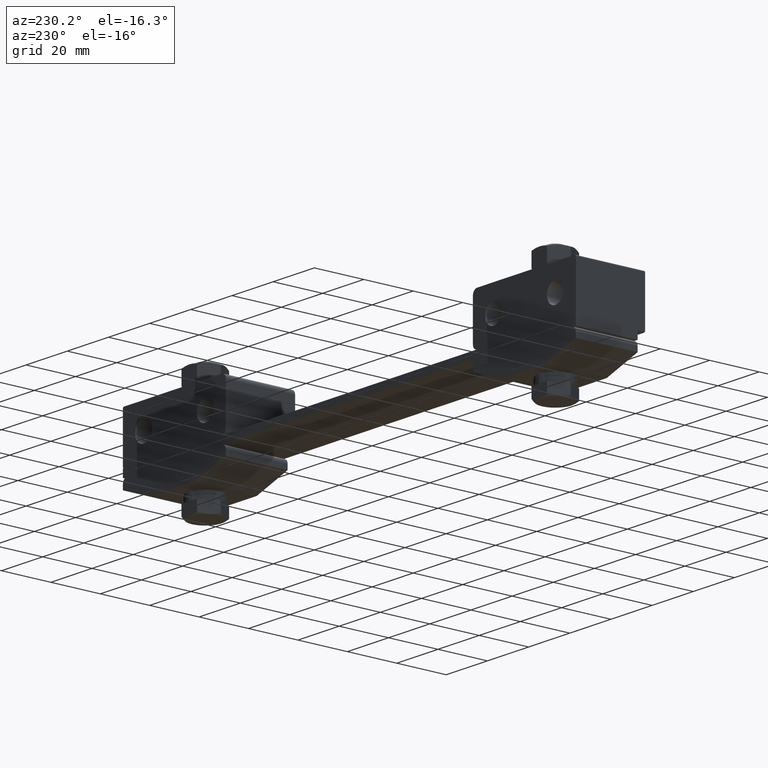
[diagram: clean part render]
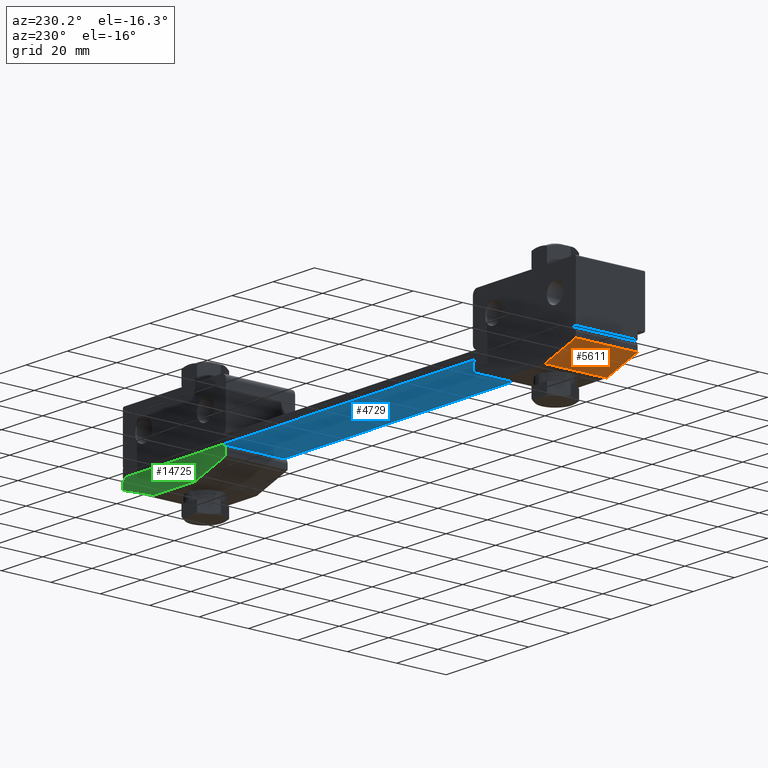
[diagram: same view with three faces highlighted in distinct colors, each labeled with its STEP entity id]
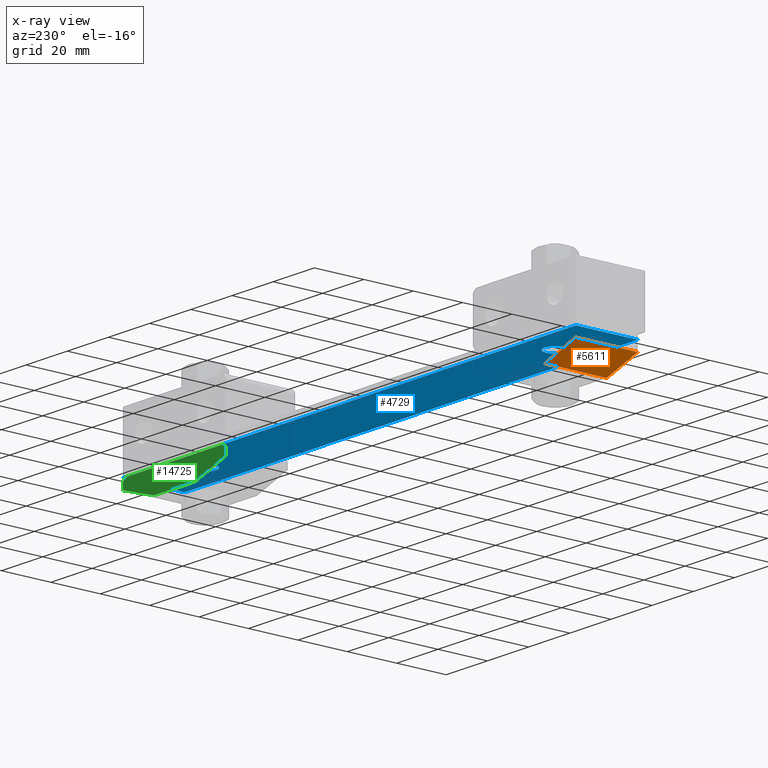
[diagram: x-ray of the same camera — body ghosted, the three highlighted faces saturated]
A machine part, auxiliary view with three faces highlighted in distinct colors.
The next image is the same camera in x-ray (body ghosted, the three faces saturated) — at least one of them is partly hidden behind the body in this view.
Their STEP definitions:

[orange] entity #5611 — the highlighted planar face has unit normal (0.3162, 0, 0.9487).
#824 = AXIS2_PLACEMENT_3D ( 'NONE', #11322, #19181, #10033 ) ;
#1397 = VECTOR ( 'NONE', #3157, 1000.000000000000000 ) ;
#1538 = ORIENTED_EDGE ( 'NONE', *, *, #8018, .F. ) ;
#2032 = FACE_OUTER_BOUND ( 'NONE', #15397, .T. ) ;
#2765 = CARTESIAN_POINT ( 'NONE',  ( -95.00000000000000000, -12.50000000000000000, -9.000000000000000000 ) ) ;
#3157 = DIRECTION ( 'NONE',  ( 0.0000000000000000000, 1.000000000000000000, 0.0000000000000000000 ) ) ;
#3241 = CARTESIAN_POINT ( 'NONE',  ( -110.0000000000000000, 12.50000000000000000, -4.000000000000000000 ) ) ;
#3351 = CARTESIAN_POINT ( 'NONE',  ( -111.1999999999999900, 12.50000000000000000, -3.600000000000000100 ) ) ;
#3411 = VERTEX_POINT ( 'NONE', #17905 ) ;
#3718 = VERTEX_POINT ( 'NONE', #8116 ) ;
#5611 = ADVANCED_FACE ( 'NONE', ( #2032 ), #17525, .F. ) ;
#5808 = ORIENTED_EDGE ( 'NONE', *, *, #15979, .F. ) ;
#8018 = EDGE_CURVE ( 'NONE', #3411, #9344, #9483, .T. ) ;
#8116 = CARTESIAN_POINT ( 'NONE',  ( -95.00000000000000000, 12.50000000000000000, -9.000000000000000000 ) ) ;
#8926 = CARTESIAN_POINT ( 'NONE',  ( -111.1999999999999900, -12.50000000000000000, -3.600000000000000100 ) ) ;
#9267 = CARTESIAN_POINT ( 'NONE',  ( -95.00000000000000000, -12.50000000000000000, -9.000000000000000000 ) ) ;
#9344 = VERTEX_POINT ( 'NONE', #9267 ) ;
#9483 = LINE ( 'NONE', #8926, #10700 ) ;
#9686 = LINE ( 'NONE', #3351, #17427 ) ;
#9868 = EDGE_CURVE ( 'NONE', #9344, #3718, #18383, .T. ) ;
#10033 = DIRECTION ( 'NONE',  ( 0.9486832980505138800, 0.0000000000000000000, -0.3162277660168380000 ) ) ;
#10700 = VECTOR ( 'NONE', #18292, 999.9999999999998900 ) ;
#10850 = VECTOR ( 'NONE', #18407, 1000.000000000000000 ) ;
#11322 = CARTESIAN_POINT ( 'NONE',  ( -95.00000000000000000, -14.00000000000000000, -9.000000000000000000 ) ) ;
#11725 = ORIENTED_EDGE ( 'NONE', *, *, #9868, .F. ) ;
#12504 = CARTESIAN_POINT ( 'NONE',  ( -110.0000000000000000, -14.00000000000000000, -4.000000000000000000 ) ) ;
#13187 = VERTEX_POINT ( 'NONE', #3241 ) ;
#15397 = EDGE_LOOP ( 'NONE', ( #19196, #5808, #11725, #1538 ) ) ;
#15979 = EDGE_CURVE ( 'NONE', #3718, #13187, #9686, .T. ) ;
#17350 = DIRECTION ( 'NONE',  ( -0.9486832980505137700, 0.0000000000000000000, 0.3162277660168380000 ) ) ;
#17427 = VECTOR ( 'NONE', #17350, 999.9999999999998900 ) ;
#17525 = PLANE ( 'NONE',  #824 ) ;
#17682 = LINE ( 'NONE', #12504, #1397 ) ;
#17905 = CARTESIAN_POINT ( 'NONE',  ( -110.0000000000000000, -12.50000000000000000, -4.000000000000000000 ) ) ;
#18292 = DIRECTION ( 'NONE',  ( 0.9486832980505137700, 0.0000000000000000000, -0.3162277660168380000 ) ) ;
#18383 = LINE ( 'NONE', #2765, #10850 ) ;
#18407 = DIRECTION ( 'NONE',  ( 0.0000000000000000000, 1.000000000000000000, 0.0000000000000000000 ) ) ;
#18617 = EDGE_CURVE ( 'NONE', #3411, #13187, #17682, .T. ) ;
#19181 = DIRECTION ( 'NONE',  ( 0.3162277660168380000, 0.0000000000000000000, 0.9486832980505138800 ) ) ;
#19196 = ORIENTED_EDGE ( 'NONE', *, *, #18617, .T. ) ;

[blue] entity #4729 — the highlighted planar face has unit normal (0, 0, 1).
#389 = DIRECTION ( 'NONE',  ( 1.000000000000000000, 0.0000000000000000000, 0.0000000000000000000 ) ) ;
#569 = CARTESIAN_POINT ( 'NONE',  ( -110.0000000000000000, 12.50000000000000000, 0.0000000000000000000 ) ) ;
#747 = EDGE_CURVE ( 'NONE', #3333, #13391, #12264, .T. ) ;
#982 = CIRCLE ( 'NONE', #7348, 4.250000000000003600 ) ;
#1344 = DIRECTION ( 'NONE',  ( 0.0000000000000000000, 0.0000000000000000000, -1.000000000000000000 ) ) ;
#1921 = CARTESIAN_POINT ( 'NONE',  ( -110.0000000000000000, -12.50000000000000000, 0.0000000000000000000 ) ) ;
#2049 = FACE_OUTER_BOUND ( 'NONE', #8543, .T. ) ;
#2186 = ORIENTED_EDGE ( 'NONE', *, *, #10026, .F. ) ;
#2688 = AXIS2_PLACEMENT_3D ( 'NONE', #4945, #15877, #8157 ) ;
#2878 = DIRECTION ( 'NONE',  ( -1.000000000000000000, 5.519574696289839900E-017, 0.0000000000000000000 ) ) ;
#3333 = VERTEX_POINT ( 'NONE', #9913 ) ;
#3369 = VERTEX_POINT ( 'NONE', #19417 ) ;
#3611 = LINE ( 'NONE', #12175, #19680 ) ;
#3733 = VERTEX_POINT ( 'NONE', #17271 ) ;
#3809 = DIRECTION ( 'NONE',  ( 0.0000000000000000000, 1.000000000000000000, 0.0000000000000000000 ) ) ;
#3912 = EDGE_LOOP ( 'NONE', ( #3937, #6437 ) ) ;
#3920 = VECTOR ( 'NONE', #3809, 1000.000000000000000 ) ;
#3937 = ORIENTED_EDGE ( 'NONE', *, *, #7026, .F. ) ;
#4089 = AXIS2_PLACEMENT_3D ( 'NONE', #1921, #17337, #389 ) ;
#4341 = DIRECTION ( 'NONE',  ( -1.000000000000000000, 0.0000000000000000000, 0.0000000000000000000 ) ) ;
#4729 = ADVANCED_FACE ( 'NONE', ( #6912, #19568, #2049 ), #8058, .F. ) ;
#4945 = CARTESIAN_POINT ( 'NONE',  ( -85.00000000000000000, 0.0000000000000000000, -1.034792368979906000E-015 ) ) ;
#5237 = VERTEX_POINT ( 'NONE', #15737 ) ;
#5264 = EDGE_CURVE ( 'NONE', #18644, #3369, #12031, .T. ) ;
#5976 = DIRECTION ( 'NONE',  ( 0.0000000000000000000, 0.0000000000000000000, -1.000000000000000000 ) ) ;
#6437 = ORIENTED_EDGE ( 'NONE', *, *, #19518, .F. ) ;
#6670 = VECTOR ( 'NONE', #7166, 1000.000000000000000 ) ;
#6912 = FACE_BOUND ( 'NONE', #3912, .T. ) ;
#7026 = EDGE_CURVE ( 'NONE', #5237, #13592, #15361, .T. ) ;
#7166 = DIRECTION ( 'NONE',  ( 1.000000000000000000, 0.0000000000000000000, 0.0000000000000000000 ) ) ;
#7262 = EDGE_CURVE ( 'NONE', #11068, #3733, #9057, .T. ) ;
#7348 = AXIS2_PLACEMENT_3D ( 'NONE', #16836, #1344, #7546 ) ;
#7546 = DIRECTION ( 'NONE',  ( -1.000000000000000000, 0.0000000000000000000, 0.0000000000000000000 ) ) ;
#8058 = PLANE ( 'NONE',  #4089 ) ;
#8111 = VECTOR ( 'NONE', #12733, 1000.000000000000000 ) ;
#8157 = DIRECTION ( 'NONE',  ( -1.000000000000000000, 0.0000000000000000000, 0.0000000000000000000 ) ) ;
#8543 = EDGE_LOOP ( 'NONE', ( #9458, #13525, #19147, #2186 ) ) ;
#8608 = AXIS2_PLACEMENT_3D ( 'NONE', #9135, #5976, #4341 ) ;
#8877 = CARTESIAN_POINT ( 'NONE',  ( -110.0000000000000000, -12.50000000000000000, 0.0000000000000000000 ) ) ;
#9038 = EDGE_CURVE ( 'NONE', #13391, #3333, #10643, .T. ) ;
#9057 = LINE ( 'NONE', #17731, #3920 ) ;
#9135 = CARTESIAN_POINT ( 'NONE',  ( 85.00000000000000000, 2.081830801498040100E-014, -1.034792368979906000E-015 ) ) ;
#9407 = CARTESIAN_POINT ( 'NONE',  ( -80.75000000000000000, 5.204748896376247700E-016, -1.034792368979906000E-015 ) ) ;
#9458 = ORIENTED_EDGE ( 'NONE', *, *, #5264, .F. ) ;
#9913 = CARTESIAN_POINT ( 'NONE',  ( 80.75000000000000000, 2.081830801498040100E-014, -1.034792368979906000E-015 ) ) ;
#10026 = EDGE_CURVE ( 'NONE', #3369, #11068, #19812, .T. ) ;
#10643 = CIRCLE ( 'NONE', #17190, 4.250000000000003600 ) ;
#10648 = EDGE_CURVE ( 'NONE', #3733, #18644, #3611, .T. ) ;
#11068 = VERTEX_POINT ( 'NONE', #14465 ) ;
#11576 = DIRECTION ( 'NONE',  ( 0.0000000000000000000, 0.0000000000000000000, -1.000000000000000000 ) ) ;
#11781 = CARTESIAN_POINT ( 'NONE',  ( 85.00000000000000000, 2.081830801498040100E-014, -1.034792368979906000E-015 ) ) ;
#12031 = LINE ( 'NONE', #569, #8111 ) ;
#12175 = CARTESIAN_POINT ( 'NONE',  ( -110.0000000000000000, 12.50000000000000000, 0.0000000000000000000 ) ) ;
#12264 = CIRCLE ( 'NONE', #8608, 4.250000000000003600 ) ;
#12733 = DIRECTION ( 'NONE',  ( 0.0000000000000000000, -1.000000000000000000, 0.0000000000000000000 ) ) ;
#13391 = VERTEX_POINT ( 'NONE', #19461 ) ;
#13525 = ORIENTED_EDGE ( 'NONE', *, *, #10648, .F. ) ;
#13592 = VERTEX_POINT ( 'NONE', #9407 ) ;
#14465 = CARTESIAN_POINT ( 'NONE',  ( 110.0000000000000000, -12.50000000000000000, 0.0000000000000000000 ) ) ;
#15361 = CIRCLE ( 'NONE', #2688, 4.250000000000003600 ) ;
#15737 = CARTESIAN_POINT ( 'NONE',  ( -89.25000000000001400, 0.0000000000000000000, -1.034792368979906000E-015 ) ) ;
#15877 = DIRECTION ( 'NONE',  ( 0.0000000000000000000, 0.0000000000000000000, -1.000000000000000000 ) ) ;
#16836 = CARTESIAN_POINT ( 'NONE',  ( -85.00000000000000000, 0.0000000000000000000, -1.034792368979906000E-015 ) ) ;
#17190 = AXIS2_PLACEMENT_3D ( 'NONE', #11781, #11576, #19300 ) ;
#17271 = CARTESIAN_POINT ( 'NONE',  ( 110.0000000000000000, 12.50000000000000000, 0.0000000000000000000 ) ) ;
#17337 = DIRECTION ( 'NONE',  ( 0.0000000000000000000, 0.0000000000000000000, 1.000000000000000000 ) ) ;
#17731 = CARTESIAN_POINT ( 'NONE',  ( 110.0000000000000000, 12.50000000000000000, 0.0000000000000000000 ) ) ;
#18187 = EDGE_LOOP ( 'NONE', ( #19473, #19468 ) ) ;
#18644 = VERTEX_POINT ( 'NONE', #18742 ) ;
#18742 = CARTESIAN_POINT ( 'NONE',  ( -110.0000000000000000, 12.50000000000000000, 0.0000000000000000000 ) ) ;
#19147 = ORIENTED_EDGE ( 'NONE', *, *, #7262, .F. ) ;
#19300 = DIRECTION ( 'NONE',  ( -1.000000000000000000, 0.0000000000000000000, 0.0000000000000000000 ) ) ;
#19417 = CARTESIAN_POINT ( 'NONE',  ( -110.0000000000000000, -12.50000000000000000, 0.0000000000000000000 ) ) ;
#19461 = CARTESIAN_POINT ( 'NONE',  ( 89.25000000000001400, 2.133878290461802200E-014, -1.034792368979906000E-015 ) ) ;
#19468 = ORIENTED_EDGE ( 'NONE', *, *, #9038, .F. ) ;
#19473 = ORIENTED_EDGE ( 'NONE', *, *, #747, .F. ) ;
#19518 = EDGE_CURVE ( 'NONE', #13592, #5237, #982, .T. ) ;
#19568 = FACE_BOUND ( 'NONE', #18187, .T. ) ;
#19680 = VECTOR ( 'NONE', #2878, 1000.000000000000000 ) ;
#19812 = LINE ( 'NONE', #8877, #6670 ) ;

[green] entity #14725 — the highlighted planar face has unit normal (0, -1, 0).
#163 = CARTESIAN_POINT ( 'NONE',  ( 62.00000000000000000, 12.50000000000000000, -2.000000000000000000 ) ) ;
#207 = VECTOR ( 'NONE', #5794, 1000.000000000000000 ) ;
#332 = DIRECTION ( 'NONE',  ( -1.000000000000000000, 0.0000000000000000000, 0.0000000000000000000 ) ) ;
#339 = DIRECTION ( 'NONE',  ( 0.0000000000000000000, 0.0000000000000000000, -1.000000000000000000 ) ) ;
#522 = LINE ( 'NONE', #17589, #1272 ) ;
#823 = EDGE_CURVE ( 'NONE', #6243, #8067, #16585, .T. ) ;
#1011 = EDGE_CURVE ( 'NONE', #16835, #8067, #522, .T. ) ;
#1024 = VECTOR ( 'NONE', #6182, 1000.000000000000000 ) ;
#1272 = VECTOR ( 'NONE', #13008, 999.9999999999998900 ) ;
#1384 = AXIS2_PLACEMENT_3D ( 'NONE', #163, #17224, #7744 ) ;
#1736 = CARTESIAN_POINT ( 'NONE',  ( 60.00000000000000000, 12.50000000000000000, 0.0000000000000000000 ) ) ;
#1958 = CARTESIAN_POINT ( 'NONE',  ( 108.0000000000000000, 12.50000000000000000, -2.000000000000000000 ) ) ;
#2808 = VECTOR ( 'NONE', #332, 1000.000000000000000 ) ;
#2897 = EDGE_CURVE ( 'NONE', #4688, #7314, #7772, .T. ) ;
#3039 = VECTOR ( 'NONE', #10615, 1000.000000000000000 ) ;
#3384 = CARTESIAN_POINT ( 'NONE',  ( 95.00000000000000000, 12.50000000000000000, -9.000000000000000000 ) ) ;
#3473 = CARTESIAN_POINT ( 'NONE',  ( 60.00000000000000000, 12.50000000000000000, 0.0000000000000000000 ) ) ;
#4101 = LINE ( 'NONE', #9023, #207 ) ;
#4276 = CARTESIAN_POINT ( 'NONE',  ( 60.00000000000000000, 12.50000000000000000, -4.000000000000000000 ) ) ;
#4282 = VERTEX_POINT ( 'NONE', #3384 ) ;
#4551 = CARTESIAN_POINT ( 'NONE',  ( 75.00000000000000000, 12.50000000000000000, -9.000000000000000000 ) ) ;
#4688 = VERTEX_POINT ( 'NONE', #15126 ) ;
#5794 = DIRECTION ( 'NONE',  ( -1.000000000000000000, 0.0000000000000000000, 0.0000000000000000000 ) ) ;
#5936 = CIRCLE ( 'NONE', #1384, 2.000000000000000000 ) ;
#6182 = DIRECTION ( 'NONE',  ( 0.0000000000000000000, 0.0000000000000000000, -1.000000000000000000 ) ) ;
#6243 = VERTEX_POINT ( 'NONE', #16406 ) ;
#6427 = EDGE_CURVE ( 'NONE', #6243, #9528, #5936, .T. ) ;
#6957 = LINE ( 'NONE', #3473, #2808 ) ;
#7314 = VERTEX_POINT ( 'NONE', #14815 ) ;
#7744 = DIRECTION ( 'NONE',  ( 0.0000000000000000000, 0.0000000000000000000, -1.000000000000000000 ) ) ;
#7772 = CIRCLE ( 'NONE', #13077, 2.000000000000000000 ) ;
#8067 = VERTEX_POINT ( 'NONE', #4276 ) ;
#8082 = FACE_OUTER_BOUND ( 'NONE', #12925, .T. ) ;
#8205 = CARTESIAN_POINT ( 'NONE',  ( 62.00000000000000000, 12.50000000000000000, 0.0000000000000000000 ) ) ;
#8236 = ORIENTED_EDGE ( 'NONE', *, *, #823, .F. ) ;
#9023 = CARTESIAN_POINT ( 'NONE',  ( 60.00000000000000000, 12.50000000000000000, -9.000000000000000000 ) ) ;
#9528 = VERTEX_POINT ( 'NONE', #8205 ) ;
#9691 = PLANE ( 'NONE',  #10682 ) ;
#10615 = DIRECTION ( 'NONE',  ( 0.0000000000000000000, 0.0000000000000000000, -1.000000000000000000 ) ) ;
#10682 = AXIS2_PLACEMENT_3D ( 'NONE', #1736, #12629, #339 ) ;
#11025 = VERTEX_POINT ( 'NONE', #16023 ) ;
#12629 = DIRECTION ( 'NONE',  ( 0.0000000000000000000, -1.000000000000000000, 0.0000000000000000000 ) ) ;
#12854 = DIRECTION ( 'NONE',  ( 0.0000000000000000000, 0.0000000000000000000, -1.000000000000000000 ) ) ;
#12925 = EDGE_LOOP ( 'NONE', ( #18044, #15492, #20046, #13160, #15589, #19528, #8236, #14676 ) ) ;
#13008 = DIRECTION ( 'NONE',  ( -0.9486832980505137700, 0.0000000000000000000, 0.3162277660168380000 ) ) ;
#13018 = EDGE_CURVE ( 'NONE', #7314, #11025, #13508, .T. ) ;
#13077 = AXIS2_PLACEMENT_3D ( 'NONE', #1958, #15734, #12854 ) ;
#13160 = ORIENTED_EDGE ( 'NONE', *, *, #15926, .T. ) ;
#13508 = LINE ( 'NONE', #19826, #3039 ) ;
#14676 = ORIENTED_EDGE ( 'NONE', *, *, #6427, .T. ) ;
#14725 = ADVANCED_FACE ( 'NONE', ( #8082 ), #9691, .F. ) ;
#14770 = VECTOR ( 'NONE', #18672, 999.9999999999998900 ) ;
#14815 = CARTESIAN_POINT ( 'NONE',  ( 110.0000000000000000, 12.50000000000000000, -2.000000000000000000 ) ) ;
#15126 = CARTESIAN_POINT ( 'NONE',  ( 108.0000000000000000, 12.50000000000000000, 0.0000000000000000000 ) ) ;
#15192 = EDGE_CURVE ( 'NONE', #4282, #16835, #4101, .T. ) ;
#15492 = ORIENTED_EDGE ( 'NONE', *, *, #2897, .T. ) ;
#15589 = ORIENTED_EDGE ( 'NONE', *, *, #15192, .T. ) ;
#15734 = DIRECTION ( 'NONE',  ( -0.0000000000000000000, 1.000000000000000000, -0.0000000000000000000 ) ) ;
#15843 = CARTESIAN_POINT ( 'NONE',  ( 66.19999999999998900, 12.50000000000000000, -18.59999999999999800 ) ) ;
#15926 = EDGE_CURVE ( 'NONE', #11025, #4282, #17684, .T. ) ;
#16023 = CARTESIAN_POINT ( 'NONE',  ( 110.0000000000000000, 12.50000000000000000, -4.000000000000000000 ) ) ;
#16395 = EDGE_CURVE ( 'NONE', #4688, #9528, #6957, .T. ) ;
#16406 = CARTESIAN_POINT ( 'NONE',  ( 60.00000000000000000, 12.50000000000000000, -2.000000000000000000 ) ) ;
#16585 = LINE ( 'NONE', #19837, #1024 ) ;
#16835 = VERTEX_POINT ( 'NONE', #4551 ) ;
#17224 = DIRECTION ( 'NONE',  ( -0.0000000000000000000, 1.000000000000000000, -0.0000000000000000000 ) ) ;
#17589 = CARTESIAN_POINT ( 'NONE',  ( 58.79999999999999700, 12.50000000000000000, -3.600000000000000100 ) ) ;
#17684 = LINE ( 'NONE', #15843, #14770 ) ;
#18044 = ORIENTED_EDGE ( 'NONE', *, *, #16395, .F. ) ;
#18672 = DIRECTION ( 'NONE',  ( -0.9486832980505137700, 0.0000000000000000000, -0.3162277660168380000 ) ) ;
#19528 = ORIENTED_EDGE ( 'NONE', *, *, #1011, .T. ) ;
#19826 = CARTESIAN_POINT ( 'NONE',  ( 110.0000000000000000, 12.50000000000000000, 0.0000000000000000000 ) ) ;
#19837 = CARTESIAN_POINT ( 'NONE',  ( 60.00000000000000000, 12.50000000000000000, 0.0000000000000000000 ) ) ;
#20046 = ORIENTED_EDGE ( 'NONE', *, *, #13018, .T. ) ;